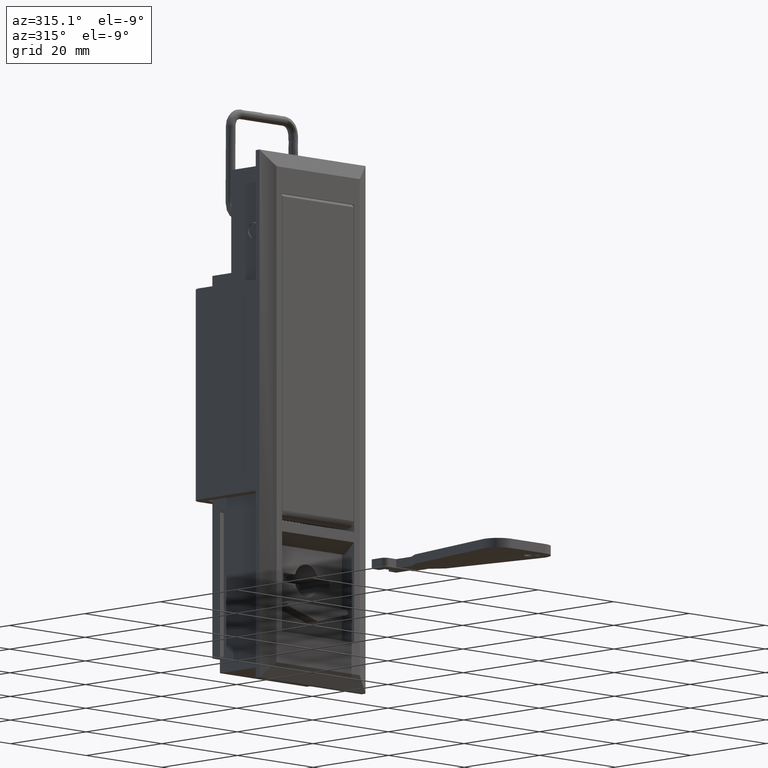
[diagram: clean part render]
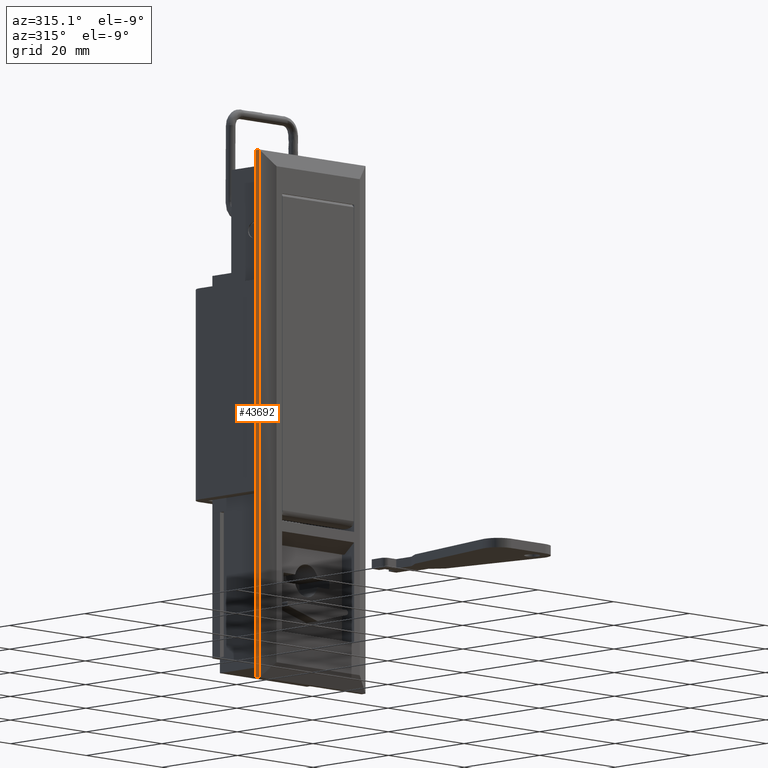
[diagram: same view with one face highlighted and labeled with its STEP entity id]
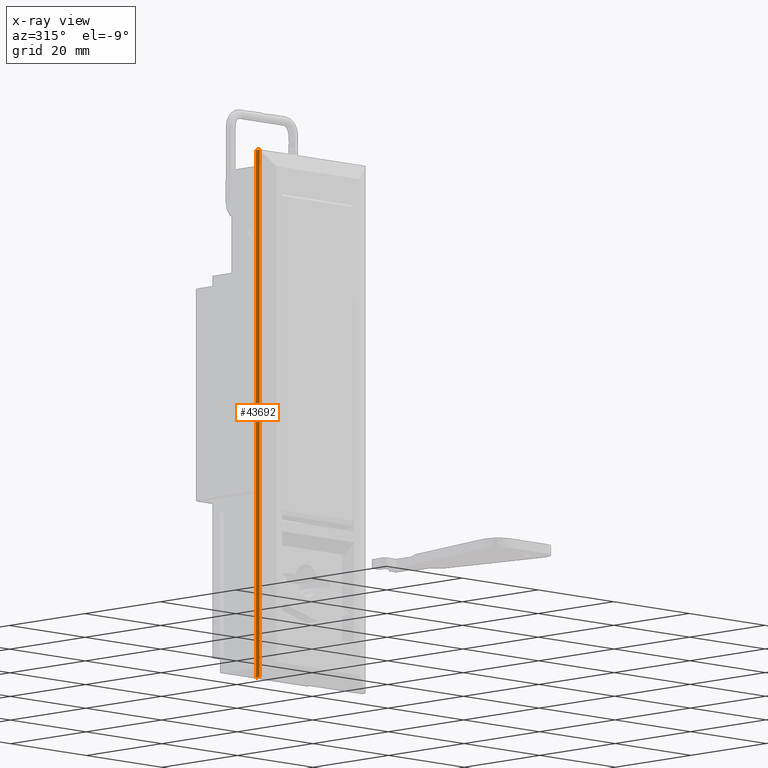
[diagram: x-ray of the same camera — body ghosted, the highlighted face saturated]
A machine part, auxiliary view. The second image highlights one B-rep face of the part: STEP entity #43692.
The next image is the same camera in x-ray: the body ghosted, the highlighted face saturated — about 0% of this face is hidden behind the body in this view.
In plain terms, the highlighted face is a freeform B-spline surface patch.
Its self-contained STEP definition (entity closure, byte-faithful):
#43444=CARTESIAN_POINT('',(0.000075000000016,14.000299999999999,0.0));
#43445=VERTEX_POINT('',#43444);
#43474=CARTESIAN_POINT('',(0.000075000000038,14.000300000000120,100.0));
#43475=VERTEX_POINT('',#43474);
#43481=CARTESIAN_POINT('',(0.000075000000016,14.000299999999999,0.0));
#43482=CARTESIAN_POINT('',(0.000075000000038,14.000300000000120,100.0));
#43483=QUASI_UNIFORM_CURVE('',1,(#43481,#43482),.UNSPECIFIED.,.F.,.U.);
#43484=EDGE_CURVE('',#43445,#43475,#43483,.T.);
#43496=CARTESIAN_POINT('',(1.0,14.000299999999999,100.0));
#43497=VERTEX_POINT('',#43496);
#43510=CARTESIAN_POINT('',(1.0,14.000299999999999,-2.571728E-015));
#43511=VERTEX_POINT('',#43510);
#43517=CARTESIAN_POINT('',(1.0,14.000299999999999,100.0));
#43518=CARTESIAN_POINT('',(1.0,14.000299999999999,-2.571728E-015));
#43519=QUASI_UNIFORM_CURVE('',1,(#43517,#43518),.UNSPECIFIED.,.F.,.U.);
#43520=EDGE_CURVE('',#43497,#43511,#43519,.T.);
#43604=CARTESIAN_POINT('',(1.0,14.000299999999999,100.0));
#43605=CARTESIAN_POINT('',(0.000075000000038,14.000300000000120,100.0));
#43606=QUASI_UNIFORM_CURVE('',1,(#43604,#43605),.UNSPECIFIED.,.F.,.U.);
#43607=EDGE_CURVE('',#43497,#43475,#43606,.T.);
#43671=CARTESIAN_POINT('',(1.0,14.000299999999999,-2.571728E-015));
#43672=CARTESIAN_POINT('',(0.000075000000016,14.000299999999999,0.0));
#43673=QUASI_UNIFORM_CURVE('',1,(#43671,#43672),.UNSPECIFIED.,.F.,.U.);
#43674=EDGE_CURVE('',#43511,#43445,#43673,.T.);
#43681=CARTESIAN_POINT('',(-0.049871251811935,14.000299999999999,-4.994999806180597));
#43682=CARTESIAN_POINT('',(-0.049871251811935,14.000299999999999,104.995002488389600));
#43683=CARTESIAN_POINT('',(1.049946278632029,14.000299999999999,-4.994999806180597));
#43684=CARTESIAN_POINT('',(1.049946278632029,14.000299999999999,104.995002488389600));
#43685=B_SPLINE_SURFACE_WITH_KNOTS('',1,1,((#43681,#43683),(#43682,#43684)),.UNSPECIFIED.,.F.,.F.,.U.,(2,2),(2,2),(0.0,109.990002294570200),(0.041708334948495,0.958291687403247),.UNSPECIFIED.);
#43686=ORIENTED_EDGE('',*,*,#43674,.T.);
#43687=ORIENTED_EDGE('',*,*,#43484,.T.);
#43688=ORIENTED_EDGE('',*,*,#43607,.F.);
#43689=ORIENTED_EDGE('',*,*,#43520,.T.);
#43690=EDGE_LOOP('',(#43686,#43687,#43688,#43689));
#43691=FACE_OUTER_BOUND('',#43690,.T.);
#43692=ADVANCED_FACE('',(#43691),#43685,.T.);